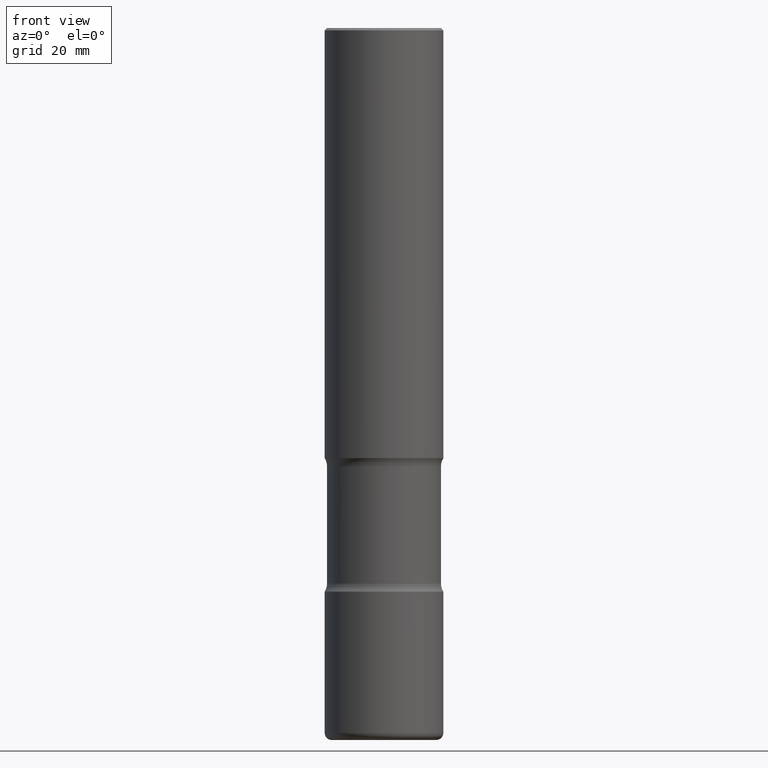
[diagram: clean part render]
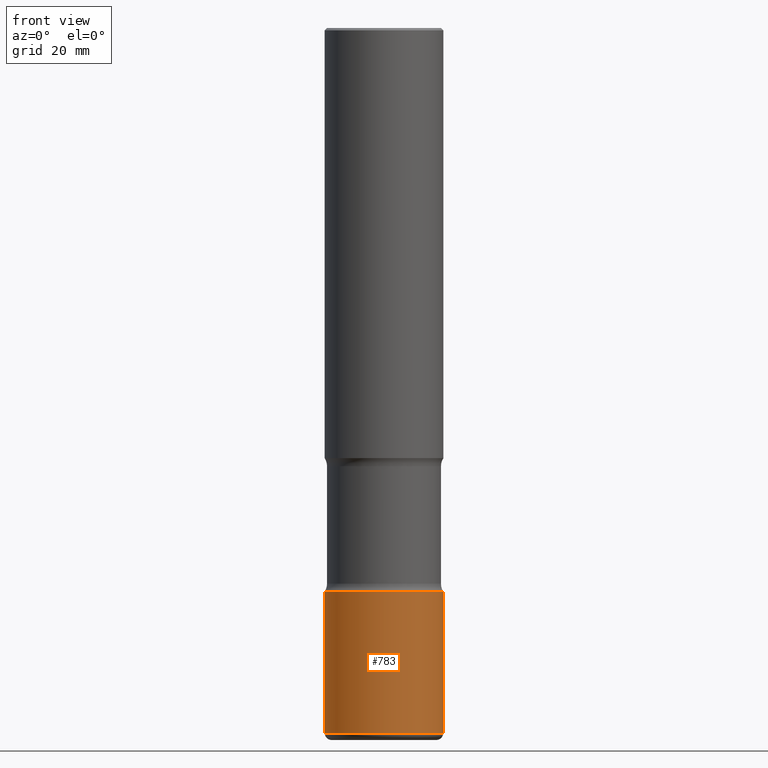
[diagram: same view with one face highlighted and labeled with its STEP entity id]
A machine part, front view. The second image highlights one B-rep face of the part: STEP entity #783.
In plain terms, the highlighted cylindrical surface (partial cylindrical patch) has radius 12.7 mm, axis along (-0, 0, 1).
Its self-contained STEP definition (entity closure, byte-faithful):
#33 = FACE_OUTER_BOUND ( 'NONE', #481, .T. ) ;
#85 = DIRECTION ( 'NONE',  ( -2.445468806185136597E-29, 3.491481338843145583E-15, 1.000000000000000000 ) ) ;
#94 = CARTESIAN_POINT ( 'NONE',  ( -0.5000000000000000000, 3.552713678800500929E-15, -2.459467545127452891E-29 ) ) ;
#168 = CARTESIAN_POINT ( 'NONE',  ( 0.5000000000000000000, -2.007601769834807675E-14, -4.750000000000000000 ) ) ;
#196 = CARTESIAN_POINT ( 'NONE',  ( 0.5000000000000000000, -3.491481338843133355E-15, 2.438088387897967896E-29 ) ) ;
#249 = EDGE_CURVE ( 'NONE', #316, #499, #341, .T. ) ;
#254 = EDGE_CURVE ( 'NONE', #318, #412, #599, .T. ) ;
#258 = ORIENTED_EDGE ( 'NONE', *, *, #254, .T. ) ;
#265 = VECTOR ( 'NONE', #773, 39.37007874015748143 ) ;
#276 = VECTOR ( 'NONE', #325, 39.37007874015748143 ) ;
#288 = CARTESIAN_POINT ( 'NONE',  ( -0.5000000000000000000, -1.510925407731611217E-14, -4.750000000000000000 ) ) ;
#316 = VERTEX_POINT ( 'NONE', #602 ) ;
#318 = VERTEX_POINT ( 'NONE', #535 ) ;
#325 = DIRECTION ( 'NONE',  ( -2.445468806185136877E-29, 3.491481338843145188E-15, 1.000000000000000000 ) ) ;
#341 = LINE ( 'NONE', #94, #276 ) ;
#376 = DIRECTION ( 'NONE',  ( 1.000000000000000000, -6.982962677686266711E-15, 0.000000000000000000 ) ) ;
#400 = EDGE_CURVE ( 'NONE', #316, #318, #765, .T. ) ;
#412 = VERTEX_POINT ( 'NONE', #168 ) ;
#418 = ORIENTED_EDGE ( 'NONE', *, *, #799, .F. ) ;
#425 = DIRECTION ( 'NONE',  ( -2.445468806185136597E-29, 3.491481338843145583E-15, 1.000000000000000000 ) ) ;
#427 = CARTESIAN_POINT ( 'NONE',  ( 1.452608470873971255E-28, -2.073939915272828597E-14, -5.940000000000000391 ) ) ;
#432 = CIRCLE ( 'NONE', #538, 0.5000000000000000000 ) ;
#434 = AXIS2_PLACEMENT_3D ( 'NONE', #777, #85, #526 ) ;
#439 = DIRECTION ( 'NONE',  ( -2.445468806185136597E-29, 3.491481338843145583E-15, 1.000000000000000000 ) ) ;
#481 = EDGE_LOOP ( 'NONE', ( #712, #628, #258, #418 ) ) ;
#499 = VERTEX_POINT ( 'NONE', #288 ) ;
#526 = DIRECTION ( 'NONE',  ( 1.000000000000000000, -6.982962677686266711E-15, 4.876176775795935793E-29 ) ) ;
#535 = CARTESIAN_POINT ( 'NONE',  ( 0.5000000000000000000, -2.423088049157142248E-14, -5.940000000000000391 ) ) ;
#538 = AXIS2_PLACEMENT_3D ( 'NONE', #753, #439, #376 ) ;
#590 = CYLINDRICAL_SURFACE ( 'NONE', #434, 0.5000000000000000000 ) ;
#599 = LINE ( 'NONE', #196, #265 ) ;
#602 = CARTESIAN_POINT ( 'NONE',  ( -0.5000000000000000000, -1.718668547392778504E-14, -5.940000000000000391 ) ) ;
#628 = ORIENTED_EDGE ( 'NONE', *, *, #400, .T. ) ;
#670 = DIRECTION ( 'NONE',  ( 1.000000000000000000, -6.982962677686270655E-15, 0.000000000000000000 ) ) ;
#712 = ORIENTED_EDGE ( 'NONE', *, *, #249, .F. ) ;
#753 = CARTESIAN_POINT ( 'NONE',  ( 1.161597682937940108E-28, -1.658453635950494339E-14, -4.750000000000000000 ) ) ;
#765 = CIRCLE ( 'NONE', #780, 0.5000000000000000000 ) ;
#773 = DIRECTION ( 'NONE',  ( -2.445468806185136877E-29, 3.491481338843145188E-15, 1.000000000000000000 ) ) ;
#777 = CARTESIAN_POINT ( 'NONE',  ( 0.000000000000000000, 0.000000000000000000, 0.000000000000000000 ) ) ;
#780 = AXIS2_PLACEMENT_3D ( 'NONE', #427, #425, #670 ) ;
#783 = ADVANCED_FACE ( 'NONE', ( #33 ), #590, .T. ) ;
#799 = EDGE_CURVE ( 'NONE', #499, #412, #432, .T. ) ;